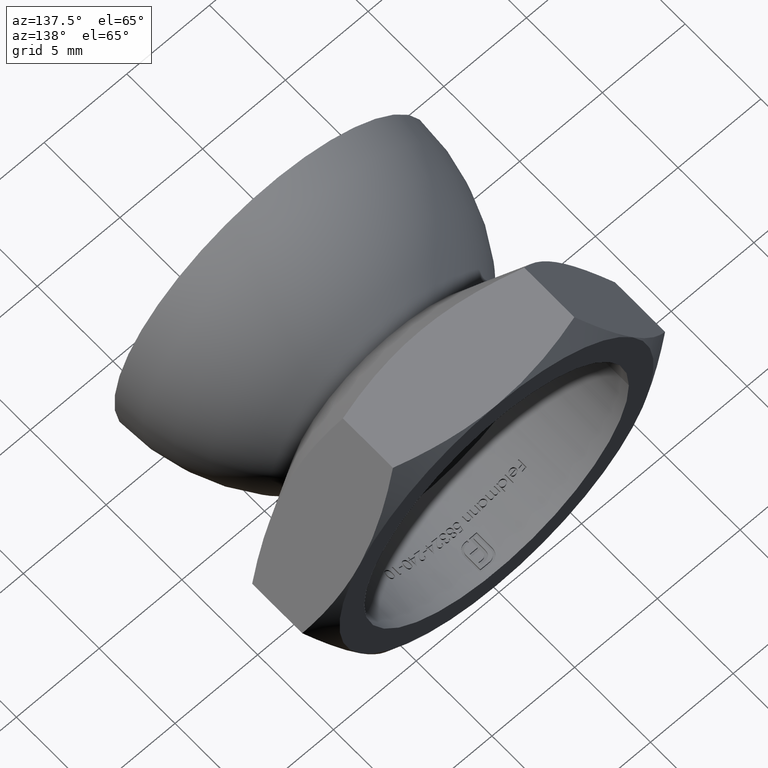
[diagram: clean part render]
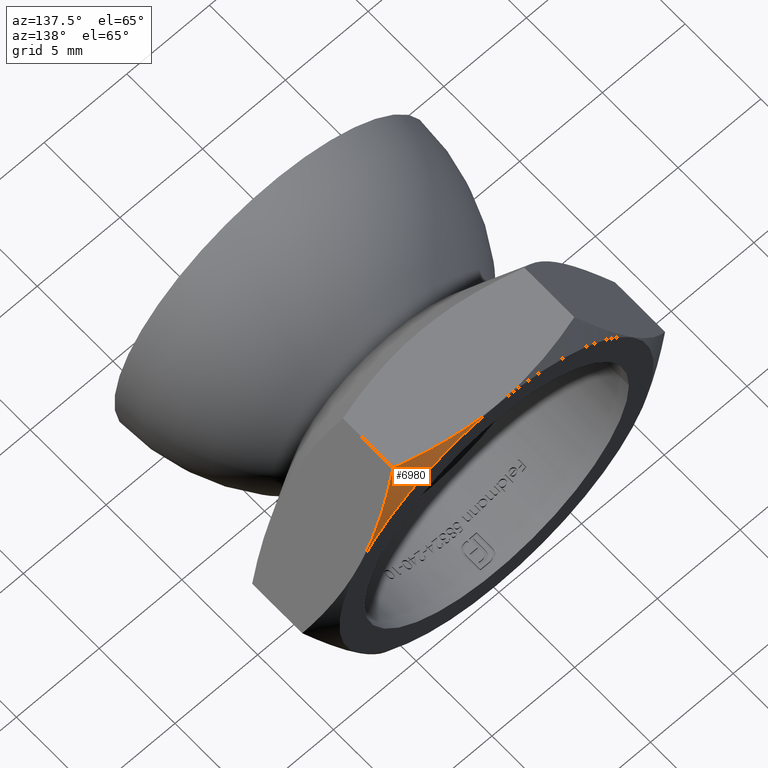
[diagram: same view with one face highlighted and labeled with its STEP entity id]
A machine part, auxiliary view. The second image highlights one B-rep face of the part: STEP entity #6980.
In plain terms, the highlighted conical surface has half-angle 60 deg.
Its self-contained STEP definition (entity closure, byte-faithful):
#683 = VERTEX_POINT ( 'NONE', #4119 ) ;
#941 = AXIS2_PLACEMENT_3D ( 'NONE', #6220, #6269, #3869 ) ;
#2254 = FACE_OUTER_BOUND ( 'NONE', #2879, .T. ) ;
#2468 = CARTESIAN_POINT ( 'NONE',  ( 6.385350094724107528, 14.47141540529629999, 7.940249211823104503 ) ) ;
#2714 = CARTESIAN_POINT ( 'NONE',  ( 2.325417565204422665, 14.69129728100082843, 9.500000000000001776 ) ) ;
#2750 = ORIENTED_EDGE ( 'NONE', *, *, #9358, .F. ) ;
#2764 = CARTESIAN_POINT ( 'NONE',  ( 5.484827557301439782, 13.99901508537490002, 9.500000000000010658 ) ) ;
#2807 = CARTESIAN_POINT ( 'NONE',  ( 4.597961519540015196, 14.25503125819325412, 9.500000000000003553 ) ) ;
#2879 = EDGE_LOOP ( 'NONE', ( #12030, #14639, #2750 ) ) ;
#3869 = DIRECTION ( 'NONE',  ( 0.000000000000000000, 0.000000000000000000, -1.000000000000000000 ) ) ;
#3892 = VERTEX_POINT ( 'NONE', #7992 ) ;
#4119 = CARTESIAN_POINT ( 'NONE',  ( 8.227241335952173884, 14.84752086140677463, 4.750000000000007105 ) ) ;
#4827 = B_SPLINE_CURVE_WITH_KNOTS ( 'NONE', 3,
 ( #10044, #9908, #9954, #9995, #2714, #13574, #2807, #2764 ),
 .UNSPECIFIED., .F., .F.,
 ( 4, 2, 2, 4 ),
 ( 0.01533434628928727513, 0.01672234374195264231, 0.01811034119461800776, 0.02088633609994873866 ),
 .UNSPECIFIED. ) ;
#4985 = CARTESIAN_POINT ( 'NONE',  ( 8.227241335952173884, 14.84752086140677463, 4.750000000000007105 ) ) ;
#6220 = CARTESIAN_POINT ( 'NONE',  ( 0.000000000000000000, 14.84752086140677463, 0.000000000000000000 ) ) ;
#6269 = DIRECTION ( 'NONE',  ( -0.000000000000000000, -1.000000000000000000, -0.000000000000000000 ) ) ;
#6383 = CONICAL_SURFACE ( 'NONE', #941, 9.500000000000008882, 1.047197551196603627 ) ;
#6547 = DIRECTION ( 'NONE',  ( 1.000000000000000000, 0.000000000000000000, 8.881784197001252323E-16 ) ) ;
#6980 = ADVANCED_FACE ( 'NONE', ( #2254 ), #6383, .T. ) ;
#7137 = VERTEX_POINT ( 'NONE', #11478 ) ;
#7308 = EDGE_CURVE ( 'NONE', #7137, #683, #7588, .T. ) ;
#7588 = B_SPLINE_CURVE_WITH_KNOTS ( 'NONE', 3,
 ( #10666, #10717, #2468, #8469, #11024, #4985 ),
 .UNSPECIFIED., .F., .F.,
 ( 4, 2, 4 ),
 ( 2.380730689641123283E-07, 0.002775111728417307185, 0.005549985383765649802 ),
 .UNSPECIFIED. ) ;
#7855 = DIRECTION ( 'NONE',  ( -4.592425496802571754E-17, 1.000000000000000000, -0.000000000000000000 ) ) ;
#7992 = CARTESIAN_POINT ( 'NONE',  ( -7.466547411456535699E-16, 14.84752086140677463, 9.500000000000008882 ) ) ;
#8219 = AXIS2_PLACEMENT_3D ( 'NONE', #10327, #7855, #6547 ) ;
#8469 = CARTESIAN_POINT ( 'NONE',  ( 7.298597182423927521, 14.76665367798975304, 6.358458856062704889 ) ) ;
#9358 = EDGE_CURVE ( 'NONE', #3892, #683, #10487, .T. ) ;
#9908 = CARTESIAN_POINT ( 'NONE',  ( 0.4636981635935758517, 14.84752086140678173, 9.499999999999998224 ) ) ;
#9954 = CARTESIAN_POINT ( 'NONE',  ( 0.9288816110906030765, 14.82781516383424680, 9.500000000000000000 ) ) ;
#9995 = CARTESIAN_POINT ( 'NONE',  ( 1.862180735233419870, 14.74950102377635375, 9.500000000000001776 ) ) ;
#10044 = CARTESIAN_POINT ( 'NONE',  ( -7.466547411456535699E-16, 14.84752086140677463, 9.500000000000008882 ) ) ;
#10327 = CARTESIAN_POINT ( 'NONE',  ( 7.556598575915065460E-16, 14.84752086140677463, 0.000000000000000000 ) ) ;
#10487 = CIRCLE ( 'NONE', #8219, 9.500000000000007105 ) ;
#10666 = CARTESIAN_POINT ( 'NONE',  ( 5.484827557301439782, 13.99901508537490002, 9.500000000000010658 ) ) ;
#10717 = CARTESIAN_POINT ( 'NONE',  ( 5.933450345244583701, 14.25802757275885213, 8.722962537849284104 ) ) ;
#11024 = CARTESIAN_POINT ( 'NONE',  ( 7.760015142428103196, 14.84752086140678529, 5.559259505810692836 ) ) ;
#11478 = CARTESIAN_POINT ( 'NONE',  ( 5.484827557301439782, 13.99901508537490002, 9.500000000000010658 ) ) ;
#12030 = ORIENTED_EDGE ( 'NONE', *, *, #12858, .T. ) ;
#12858 = EDGE_CURVE ( 'NONE', #3892, #7137, #4827, .T. ) ;
#13574 = CARTESIAN_POINT ( 'NONE',  ( 3.699462310192063619, 14.46824151787938106, 9.500000000000003553 ) ) ;
#14639 = ORIENTED_EDGE ( 'NONE', *, *, #7308, .T. ) ;